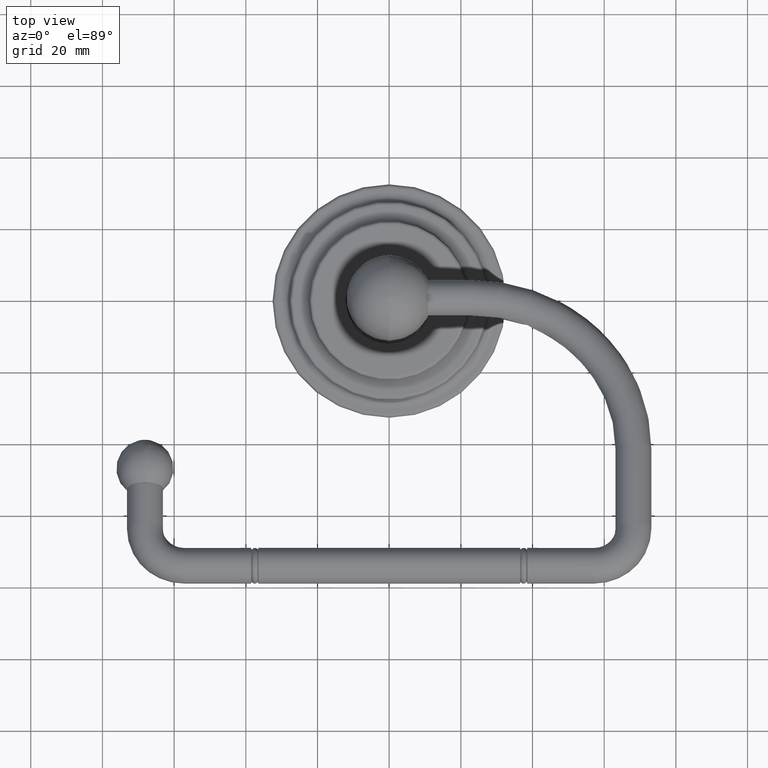
[diagram: clean part render]
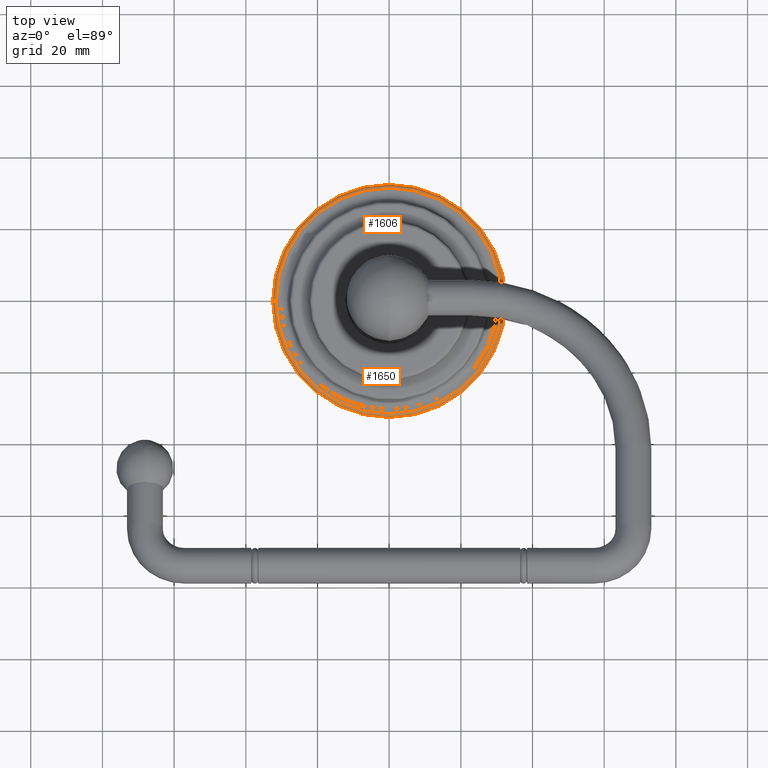
[diagram: same view with one multi-face feature highlighted, each face labeled with its STEP entity id]
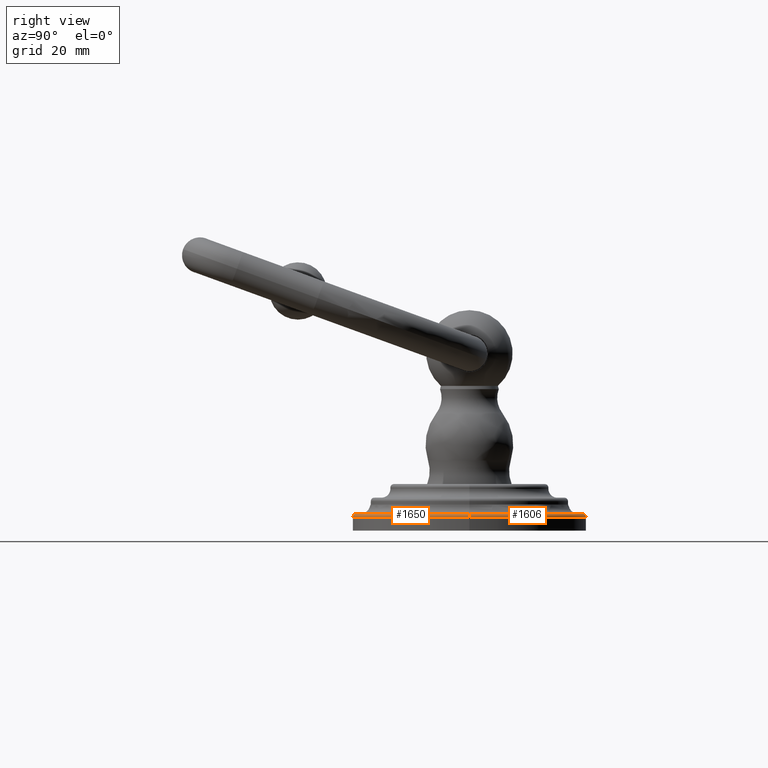
[diagram: same view with one multi-face feature highlighted, each face labeled with its STEP entity id]
A machine part, top view. The highlighted faces form ONE feature: a constant-radius fillet chain: 2 tangent blend faces with common blend radius 0.9906 mm. The faces share edges in the B-rep.
A second angle (right view) of the same feature is appended — it is thin or edge-on in the first view.
Their STEP definitions:
[1] entity #1650 (Torus):
#174=CARTESIAN_POINT('',(1.241E0,0.E0,1.5E-1));
#175=DIRECTION('',(0.E0,1.E0,0.E0));
#176=DIRECTION('',(-1.138690281667E-14,0.E0,1.E0));
#177=AXIS2_PLACEMENT_3D('',#174,#175,#176);
#190=CARTESIAN_POINT('',(1.226962381598E-14,0.E0,1.89E-1));
#191=DIRECTION('',(0.E0,0.E0,1.E0));
#192=DIRECTION('',(-1.E0,0.E0,0.E0));
#193=AXIS2_PLACEMENT_3D('',#190,#191,#192);
#198=CARTESIAN_POINT('',(-1.241E0,0.E0,1.5E-1));
#199=DIRECTION('',(0.E0,-1.E0,0.E0));
#200=DIRECTION('',(0.E0,0.E0,1.E0));
#201=AXIS2_PLACEMENT_3D('',#198,#199,#200);
#206=CARTESIAN_POINT('',(1.226484769346E-14,0.E0,1.5E-1));
#207=DIRECTION('',(0.E0,0.E0,1.E0));
#208=DIRECTION('',(-1.E0,0.E0,0.E0));
#209=AXIS2_PLACEMENT_3D('',#206,#207,#208);
#1405=CARTESIAN_POINT('',(1.241E0,0.E0,1.89E-1));
#1406=CARTESIAN_POINT('',(-1.241E0,0.E0,1.89E-1));
#1407=VERTEX_POINT('',#1405);
#1408=VERTEX_POINT('',#1406);
#1409=CARTESIAN_POINT('',(1.28E0,0.E0,1.5E-1));
#1410=CARTESIAN_POINT('',(-1.28E0,0.E0,1.5E-1));
#1411=VERTEX_POINT('',#1409);
#1412=VERTEX_POINT('',#1410);
#1638=CARTESIAN_POINT('',(1.226484769346E-14,0.E0,1.5E-1));
#1639=DIRECTION('',(0.E0,0.E0,1.E0));
#1640=DIRECTION('',(-9.999903501796E-1,4.393125047364E-3,0.E0));
#1641=AXIS2_PLACEMENT_3D('',#1638,#1639,#1640);
#1642=TOROIDAL_SURFACE('',#1641,1.241E0,3.9E-2);
#1643=ORIENTED_EDGE('',*,*,#1620,.T.);
#1644=ORIENTED_EDGE('',*,*,#1602,.T.);
#1646=ORIENTED_EDGE('',*,*,#1645,.F.);
#1647=ORIENTED_EDGE('',*,*,#1599,.F.);
#1648=EDGE_LOOP('',(#1643,#1644,#1646,#1647));
#1649=FACE_OUTER_BOUND('',#1648,.F.);
#178=CIRCLE('',#177,3.9E-2);
#194=CIRCLE('',#193,1.241E0);
#202=CIRCLE('',#201,3.9E-2);
#210=CIRCLE('',#209,1.28E0);
#1599=EDGE_CURVE('',#1408,#1412,#202,.T.);
#1602=EDGE_CURVE('',#1407,#1411,#178,.T.);
#1620=EDGE_CURVE('',#1408,#1407,#194,.T.);
#1645=EDGE_CURVE('',#1412,#1411,#210,.T.);
#1650=ADVANCED_FACE('',(#1649),#1642,.T.);
[2] entity #1606 (Torus):
#157=CARTESIAN_POINT('',(1.226484769346E-14,0.E0,1.5E-1));
#158=DIRECTION('',(0.E0,0.E0,1.E0));
#159=DIRECTION('',(1.E0,0.E0,0.E0));
#160=AXIS2_PLACEMENT_3D('',#157,#158,#159);
#174=CARTESIAN_POINT('',(1.241E0,0.E0,1.5E-1));
#175=DIRECTION('',(0.E0,1.E0,0.E0));
#176=DIRECTION('',(-1.138690281667E-14,0.E0,1.E0));
#177=AXIS2_PLACEMENT_3D('',#174,#175,#176);
#182=CARTESIAN_POINT('',(1.226962381598E-14,0.E0,1.89E-1));
#183=DIRECTION('',(0.E0,0.E0,1.E0));
#184=DIRECTION('',(1.E0,0.E0,0.E0));
#185=AXIS2_PLACEMENT_3D('',#182,#183,#184);
#198=CARTESIAN_POINT('',(-1.241E0,0.E0,1.5E-1));
#199=DIRECTION('',(0.E0,-1.E0,0.E0));
#200=DIRECTION('',(0.E0,0.E0,1.E0));
#201=AXIS2_PLACEMENT_3D('',#198,#199,#200);
#1405=CARTESIAN_POINT('',(1.241E0,0.E0,1.89E-1));
#1406=CARTESIAN_POINT('',(-1.241E0,0.E0,1.89E-1));
#1407=VERTEX_POINT('',#1405);
#1408=VERTEX_POINT('',#1406);
#1409=CARTESIAN_POINT('',(1.28E0,0.E0,1.5E-1));
#1410=CARTESIAN_POINT('',(-1.28E0,0.E0,1.5E-1));
#1411=VERTEX_POINT('',#1409);
#1412=VERTEX_POINT('',#1410);
#1592=CARTESIAN_POINT('',(1.226484769346E-14,0.E0,1.5E-1));
#1593=DIRECTION('',(0.E0,0.E0,1.E0));
#1594=DIRECTION('',(9.999903501796E-1,-4.393125047364E-3,0.E0));
#1595=AXIS2_PLACEMENT_3D('',#1592,#1593,#1594);
#1596=TOROIDAL_SURFACE('',#1595,1.241E0,3.9E-2);
#1598=ORIENTED_EDGE('',*,*,#1597,.T.);
#1600=ORIENTED_EDGE('',*,*,#1599,.T.);
#1601=ORIENTED_EDGE('',*,*,#1574,.F.);
#1603=ORIENTED_EDGE('',*,*,#1602,.F.);
#1604=EDGE_LOOP('',(#1598,#1600,#1601,#1603));
#1605=FACE_OUTER_BOUND('',#1604,.F.);
#161=CIRCLE('',#160,1.28E0);
#178=CIRCLE('',#177,3.9E-2);
#186=CIRCLE('',#185,1.241E0);
#202=CIRCLE('',#201,3.9E-2);
#1574=EDGE_CURVE('',#1411,#1412,#161,.T.);
#1597=EDGE_CURVE('',#1407,#1408,#186,.T.);
#1599=EDGE_CURVE('',#1408,#1412,#202,.T.);
#1602=EDGE_CURVE('',#1407,#1411,#178,.T.);
#1606=ADVANCED_FACE('',(#1605),#1596,.T.);